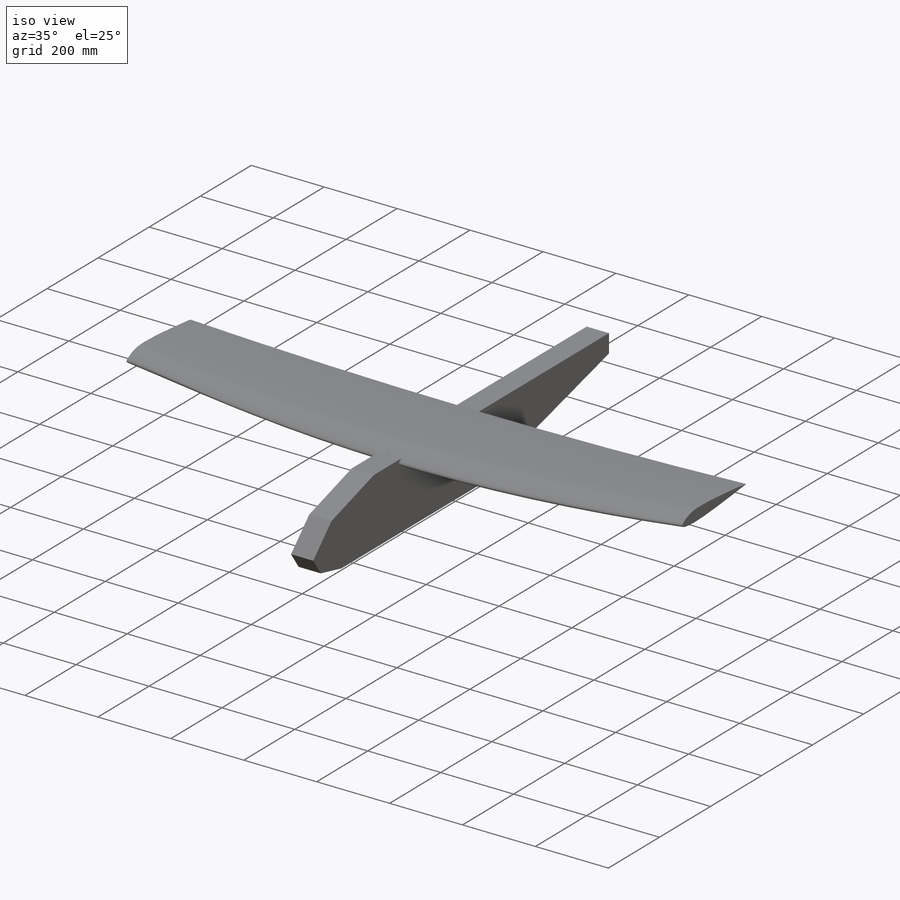
[diagram: iso view]
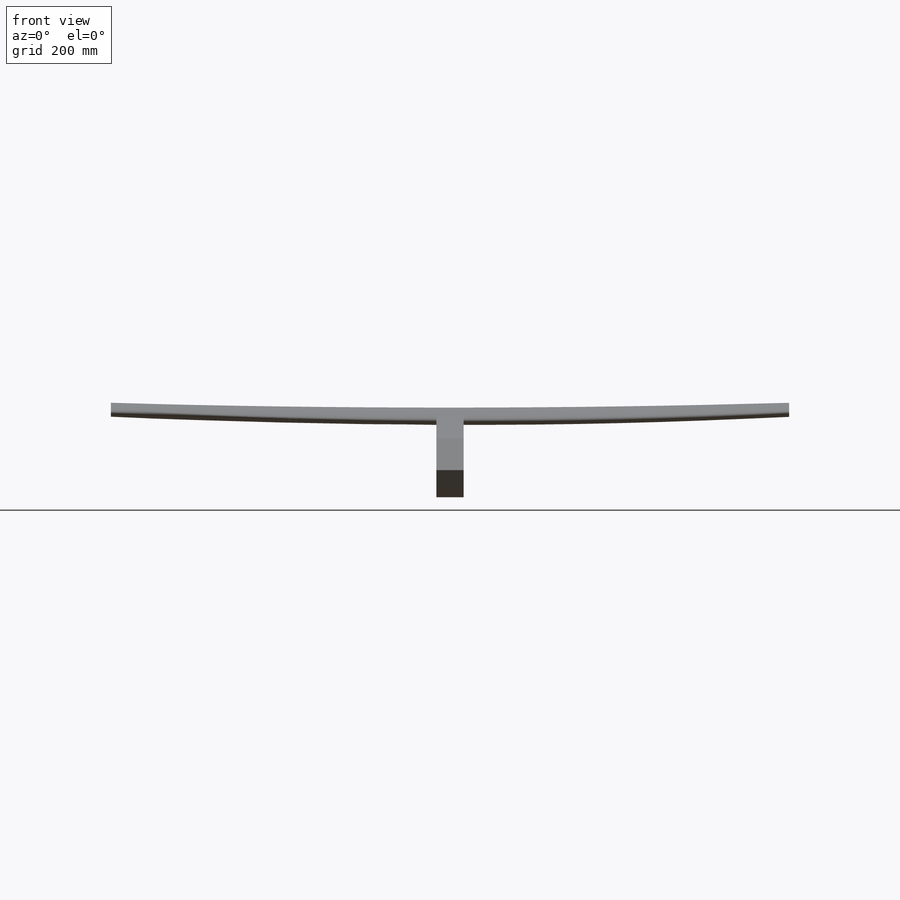
[diagram: front view]
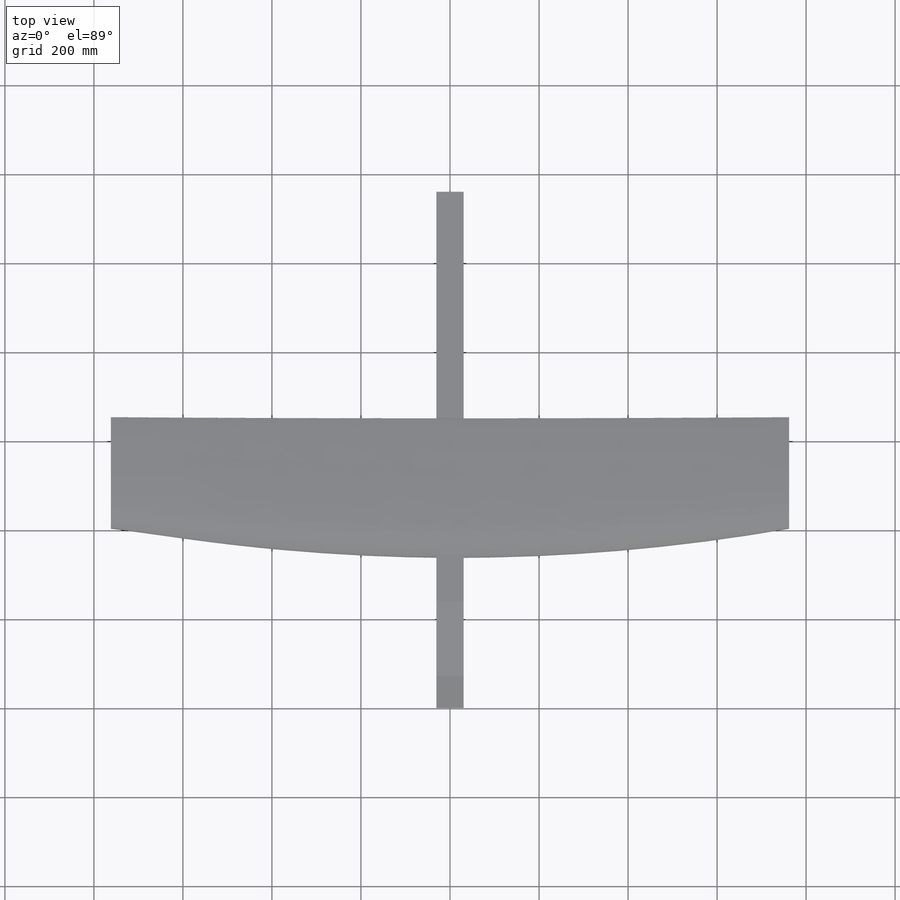
[diagram: top view]
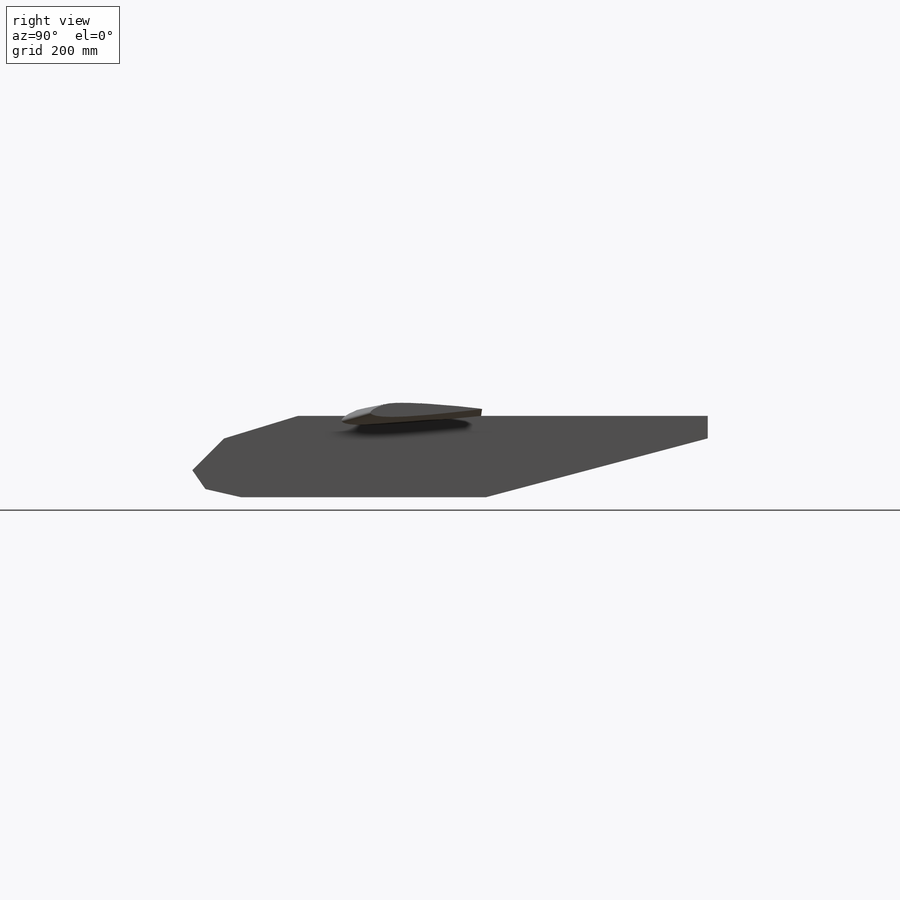
[diagram: right view]
SOLIDWORKS PART (.sldprt)
format: sldprt  version: not decoded by parser v0  size: 249,344 bytes
history: native  units: mm
features: sketch x4, plane x2, material x1, extrude x1 (+11 scaffold rows collapsed)
feature tree (19):
  scaffold x11  (default folders/planes/origin — collapsed)
  material  "Material <not specified>"
  sketch  "Sketch1"  dims[c1.D1=~11.085179mm c2.D1=~165.13899deg c2.D2=~41.77555mm c3.D2=~104.86101deg c4.D2=~11.085838mm c5.D2=~137.58793deg c5.D3=~2.473552mm c6.D3=~167.107223deg c6.D4=~6.779366mm c7.D4=~100.304846deg c7.D5=~4.030974mm c8.D5=~163.009177deg c8.D6=~13.794382mm c9.D6=~151.990823deg c10.D6=1158.24mm c10.D7=182.88mm c10.D8=60.96mm]
  extrude  "Boss-Extrude1"  Depth=30.48mm
  sketch  "Sketch2"  dims[D1=304.8mm]
  plane  "Plane1"  Offset=762mm
  plane  "Plane2"  Offset=762mm
  sketch  "Sketch3"  dims[D1=0.0mm]
  sketch  "Sketch4"  dims[D1=0.0mm]
decode coverage: 5 of 5 modeling features carry decoded parameters
note: ~ marks probable driven/reference dimensions
note: suppression state not decoded; provenance and decode notes live in map.json
